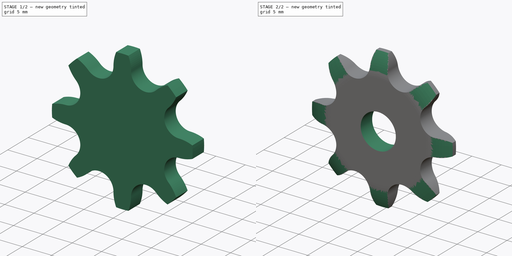
[diagram: build sequence overview — one tinted view per stage of 2, left to right]
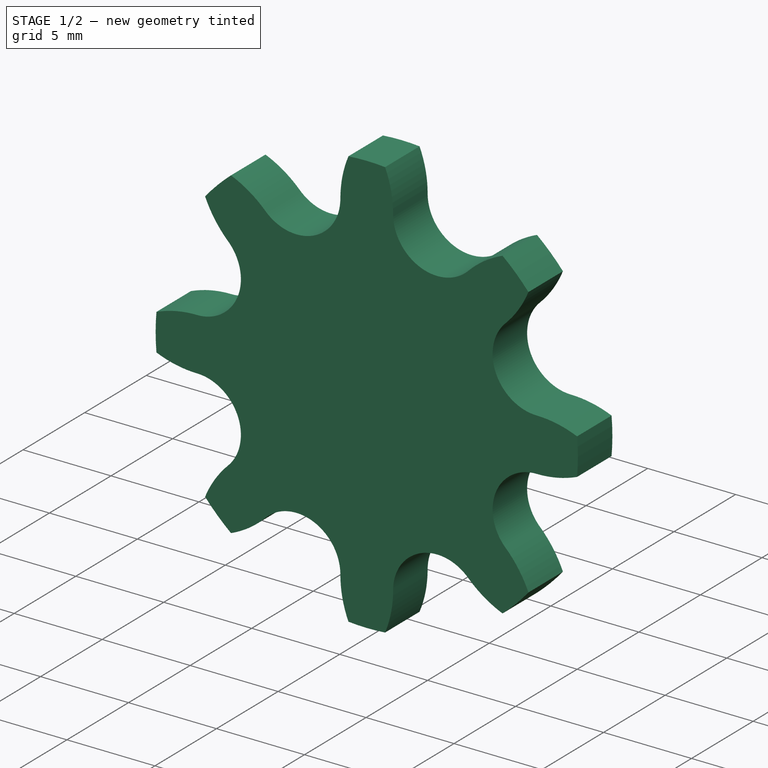
[diagram: stage 1 of 2 — iso view after this stage's code; geometry added in this stage tinted green]
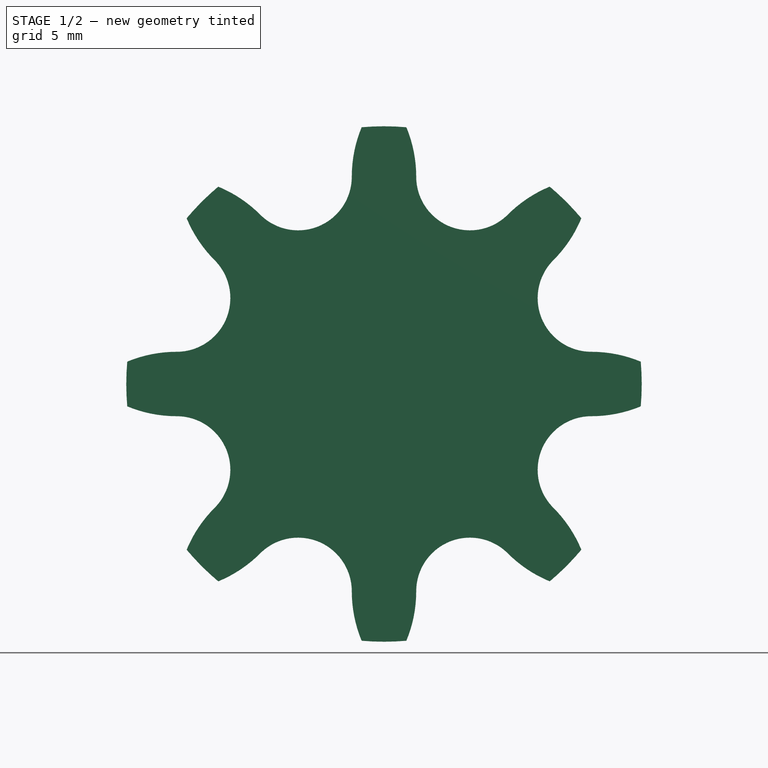
[diagram: stage 1 of 2 — front view after this stage's code; geometry added in this stage tinted green]
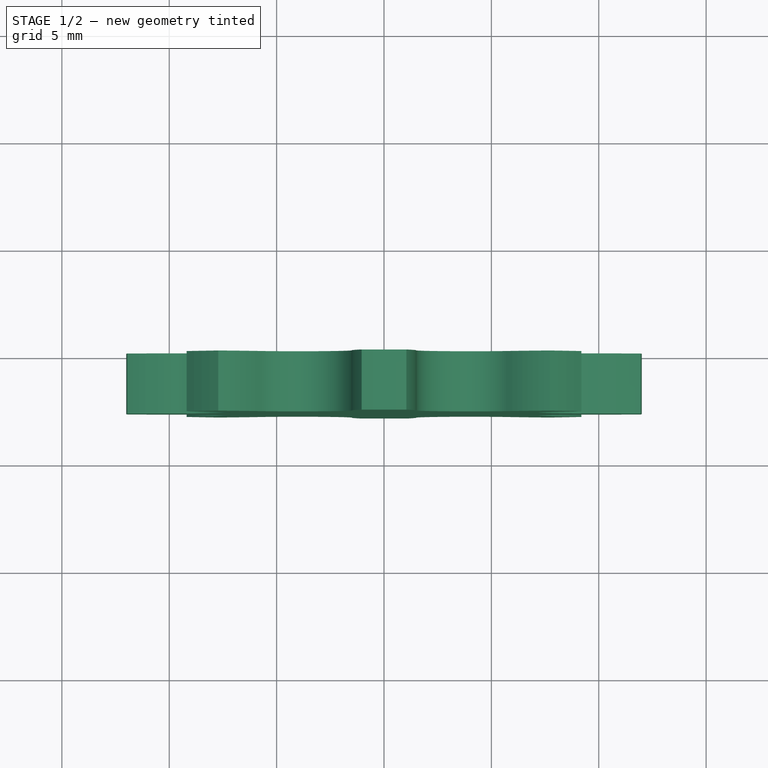
[diagram: stage 1 of 2 — top view after this stage's code; geometry added in this stage tinted green]
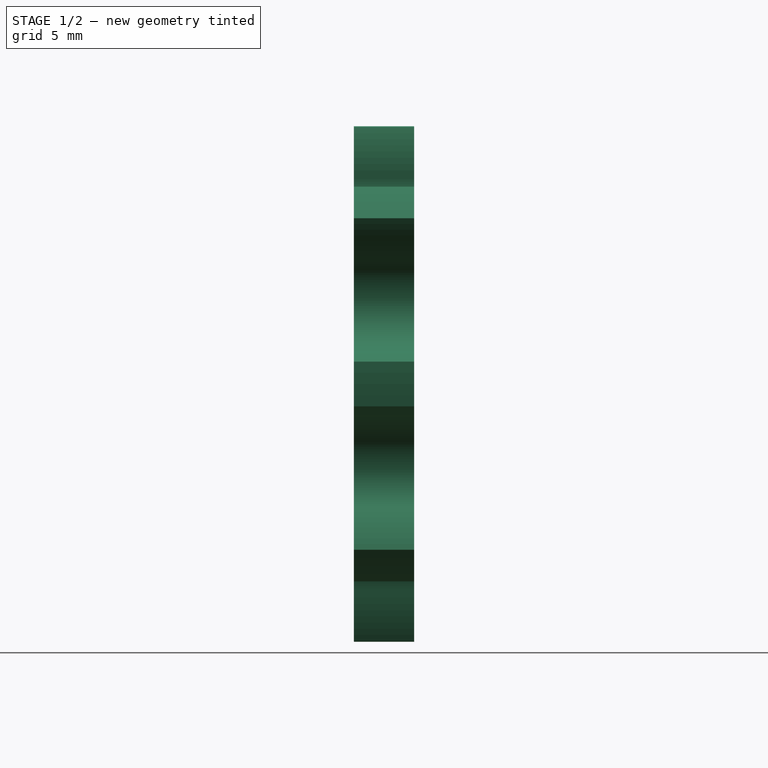
[diagram: stage 1 of 2 — right view after this stage's code; geometry added in this stage tinted green]
FCSTD DOCUMENT  (FreeCAD 0.20R29603 (Git))
Label: Plate Wheel simplex 8x3
License: Attribution 4.0 International (CC BY 4.0)
LicenseURL: http://creativecommons.org/licenses/by/4.0/
objects: Sketcher::SketchObject×3, Spreadsheet::Sheet×1, PartDesign::Pad×1, PartDesign::PolarPattern×1, PartDesign::Groove×1, PartDesign::Pocket×1, PartDesign::Body×1
note: 11 computed .brp shape members not serialized (recipe doc carries the construction recipe); baked Part::Feature solids carry a one-line shape summary decoded from their .brp

FEATURE [Spreadsheet::Sheet] Spreadsheet  label="Data"
  TeethNumber = 0
  cells = B1=P (Pitch); C1=Wc (Chain width); D1=Dr (Roller diameter); E1=Tr (Tooth radius); F1=Rw (Radius width); G1=Wt (Tooth width); H1=z (Number of teeth); I1=De (External Diameter); J1=Dp (Pitch diameter); K1=D (Hole diameter); L1=H (Total height); A2==hiddenref(.TeethNumber.String); B2(P)==.B3; C2(Wc)==.C3; D2(Dr)==.D3; E2(Tr)==.E3; F2(Rw)==.F3; G2(Wt)==.G3; H2(z)==.H3; I2(De)==.I3; J2(Dp)==.J3; K2(D)==.K3; L2(H)==.L3; A3=Z 8; B3=8; C3=3; D3=5; E3=8; F3=1; G3=2.8; H3=8; I3=24; J3=20.9; K3=6; L3=2.8; A4=Z 9; B4=8; C4=3; D4=5; E4=8; F4=1; G4=2.8; H4=9; I4=26.6; J4=23.39; K4=6; L4=2.8; A5=Z 10; B5=8; C5=3; D5=5; E5=8; F5=1; G5=2.8; H5=10; I5=29.2; J5=25.89; K5=8; L5=2.8; A6=Z 11; B6=8; C6=3; D6=5; E6=8; F6=1; G6=2.8; H6=11; I6=31.7; J6=28.39; K6=8; L6=2.8; A7=Z 12; B7=8; C7=3; D7=5; E7=8; F7=1; G7=2.8; H7=12; I7=34.2; J7=30.91; K7=8; L7=2.8; A8=Z 13; B8=8; C8=3; D8=5; E8=8; F8=1; G8=2.8; H8=13; I8=36.7; J8=33.42; K8=8; L8=2.8; A9=Z 14; B9=8; C9=3; D9=5; E9=8; F9=1; G9=2.8; H9=14; I9=39.2; J9=35.95; K9=8; L9=2.8; A10=Z 15; B10=8; C10=3; D10=5; E10=8; F10=1; G10=2.8; H10=15; I10=41.7; J10=38.48; K10=8; L10=2.8; A11=Z 16; B11=8; C11=3; D11=5; E11=8; F11=1; G11=2.8; H11=16; I11=44.3; J11=41.01; K11=8; L11=2.8; A12=Z 17; B12=8; C12=3; D12=5; E12=8; F12=1; G12=2.8; H12=17; I12=46.8; J12=43.53; K12=8; L12=2.8; A13=Z 18; B13=8; C13=3; D13=5; E13=8; F13=1; G13=2.8; H13=18; I13=49.3; J13=46.07; K13=8; L13=2.8; A14=Z 19; B14=8; C14=3; D14=5; E14=8; F14=1; G14=2.8; H14=19; I14=51.9; J14=48.61; K14=8; L14=2.8; A15=Z 20; B15=8; C15=3; D15=5; E15=8; F15=1; G15=2.8; H15=20; I15=54.4; J15=51.14; K15=8; L15=2.8; A16=Z 21; B16=8; C16=3; D16=5; E16=8; F16=1; G16=2.8; H16=21; I16=57; J16=53.68; K16=8; L16=2.8; A17=Z 22; B17=8; C17=3; D17=5; E17=8; F17=1; G17=2.8; H17=22; I17=59.5; +339 more cells
  expr: .TeethNumber.Enum = cells[<<A3:|>>]
  expr: .cells.Bind.B2.ZZ2 = tuple(.cells; <<B>> + str(hiddenref(TeethNumber) + 3); <<ZZ>> + str(hiddenref(TeethNumber) + 3))
FEATURE [Sketcher::SketchObject] Sketch  label="Tooth sketch"
  FullyConstrained = true
  MapMode = 5
  Placement = pos=(0,0,0) rot=(1,0,0;1.5708rad)
  Support = -> [XZ_Plane]
  expr: .Constraints.De = <<Data>>.De
  expr: .Constraints.Di = <<Data>>.Dp - <<Data>>.Dr
  expr: .Constraints.Dp = <<Data>>.Dp
  expr: .Constraints.Dr = <<Data>>.Dr
  expr: .Constraints.P = Spreadsheet.P
  expr: .Constraints.Ru = 0.12 * <<Data>>.Dr * (<<Data>>.z + 2)
  sketch-geometry (16):
    g0: Circle CenterX=0 CenterY=0 CenterZ=0 NormalX=0 NormalY=0 NormalZ=1 AngleXU=0 Radius=10.45
    g1: LineSegment StartX=-4 StartY=9.65414 StartZ=0 EndX=4 EndY=9.65414 EndZ=0
    g2: Circle CenterX=-4 CenterY=9.65414 CenterZ=0 NormalX=0 NormalY=0 NormalZ=1 AngleXU=0 Radius=2.5
    g3: Circle CenterX=4 CenterY=9.65414 CenterZ=0 NormalX=0 NormalY=0 NormalZ=1 AngleXU=0 Radius=2.5
    g4: LineSegment StartX=0 StartY=0 StartZ=0 EndX=-4 EndY=9.65414 EndZ=0
    g5: LineSegment StartX=0 StartY=0 StartZ=0 EndX=4 EndY=9.65414 EndZ=0
    g6: Circle CenterX=0 CenterY=0 CenterZ=0 NormalX=0 NormalY=0 NormalZ=1 AngleXU=0 Radius=7.95
    g7: Circle CenterX=0 CenterY=0 CenterZ=0 NormalX=0 NormalY=0 NormalZ=1 AngleXU=0 Radius=12
    g8: ArcOfCircle CenterX=-4 CenterY=9.65414 CenterZ=0 NormalX=0 NormalY=0 NormalZ=1 AngleXU=0 Radius=2.5 StartAngle=5.10519 EndAngle=6.28319
    g9: ArcOfCircle CenterX=4.5 CenterY=9.65414 CenterZ=0 NormalX=0 NormalY=0 NormalZ=1 AngleXU=0 Radius=6 StartAngle=2.74809 EndAngle=3.14159
    g10: ArcOfCircle CenterX=4 CenterY=9.65414 CenterZ=0 NormalX=0 NormalY=0 NormalZ=1 AngleXU=0 Radius=2.5 StartAngle=3.14159 EndAngle=4.31959
    g11: ArcOfCircle CenterX=-4.5 CenterY=9.65414 CenterZ=0 NormalX=0 NormalY=0 NormalZ=1 AngleXU=0 Radius=6 StartAngle=5e-16 EndAngle=0.393507
    g12: ArcOfCircle CenterX=0 CenterY=0 CenterZ=0 NormalX=0 NormalY=0 NormalZ=1 AngleXU=0 Radius=12 StartAngle=1.4839 EndAngle=1.65769
    g13: LineSegment StartX=-3.04306 StartY=7.34454 StartZ=0 EndX=-3.04306 EndY=0 EndZ=0
    g14: LineSegment StartX=3.04306 StartY=7.34454 StartZ=0 EndX=3.04306 EndY=0 EndZ=0
    g15: LineSegment StartX=-3.04306 StartY=0 StartZ=0 EndX=3.04306 EndY=0 EndZ=0
  constraints (42):
    c: Coincident(g0,g-1)
    c: Diameter(g0) = 20.9  'Dp'
    c: PointOnObject(g1,g0)
    c: PointOnObject(g1,g0)
    c: Horizontal(g1)
    c: DistanceX(g1,g1) = 8  'P'
    c: Coincident(g2,g1)
    c: Coincident(g3,g1)
    c: Equal(g2,g3)
    c: Diameter(g2) = 5  'Dr'
    c: Coincident(g4,g-1)
    c: Coincident(g4,g1)
    c: Coincident(g5,g-1)
    c: Coincident(g6,g-1)
    c: Diameter(g6) = 15.9  'Di'
    c: Coincident(g7,g-1)
    c: Diameter(g7) = 24  'De'
    c: Coincident(g8,g1)
    c: PointOnObject(g8,g4)
    c: PointOnObject(g8,g2)
    c: PointOnObject(g8,g1)
    c: PointOnObject(g9,g7)
    c: Tangent(g9,g8) = 1.5708
    c: Radius(g9) = 6  'Ru'
    c: Coincident(g10,g1)
    c: PointOnObject(g10,g5)
    c: PointOnObject(g10,g1)
    c: Equal(g9,g11)
    c: Coincident(g12,g-1)
    c: Coincident(g12,g9)
    c: Coincident(g12,g11)
    c: Coincident(g5,g10)
    c: Equal(g10,g8)
    c: Tangent(g11,g10) = 1.5708
    c: Coincident(g13,g8)
    c: Vertical(g13)
    c: Coincident(g14,g10)
    c: Vertical(g14)
    c: Coincident(g15,g13)
    c: Coincident(g15,g14)
    c: Horizontal(g15)
    c: PointOnObject(g12,g15)
FEATURE [PartDesign::Pad] Pad  label="Tooth"
  Direction = (0,-1,-2e-16)
  Length = 2.8
  Length2 = 100
  Placement = pos=(0,0,0) rot=(1,0,0;1.5708rad)
  Profile = -> Sketch
  Type = 0
  expr: Length = <<Data>>.Wt
FEATURE [Sketcher::SketchObject] Sketch001  label="Radius"
  FullyConstrained = true
  MapMode = 5
  Placement = pos=(0,0,0) rot=(0.57735,0.57735,0.57735;2.0944rad)
  Support = -> [YZ_Plane]
  expr: .Constraints.Re = <<Data>>.De / 2
  expr: .Constraints.Rw = <<Data>>.Rw
  expr: .Constraints.Tr = <<Data>>.Tr
  expr: .Constraints.Wt = <<Data>>.Wt
  sketch-geometry (7):
    g0: ArcOfCircle CenterX=5.2 CenterY=8.12702 CenterZ=0 NormalX=0 NormalY=0 NormalZ=1 AngleXU=0 Radius=8 StartAngle=2.63623 EndAngle=3.1416
    g1: LineSegment StartX=-1.8 StartY=12 StartZ=0 EndX=-2.8 EndY=12 EndZ=0
    g2: LineSegment StartX=-2.8 StartY=12 StartZ=0 EndX=-2.8 EndY=8.127 EndZ=0
    g3: LineSegment StartX=-1 StartY=12 StartZ=0 EndX=0 EndY=12 EndZ=0
    g4: LineSegment StartX=0 StartY=12 StartZ=0 EndX=0 EndY=8.127 EndZ=0
    g5: ArcOfCircle CenterX=-8 CenterY=8.12702 CenterZ=0 NormalX=0 NormalY=0 NormalZ=1 AngleXU=0 Radius=8 StartAngle=6.28318 EndAngle=6.78855
    g6: LineSegment StartX=-1.8 StartY=12 StartZ=0 EndX=-1 EndY=12 EndZ=0
  constraints (22):
    c: Radius(g0) = 8  'Tr'
    c: Coincident(g1,g0)
    c: Horizontal(g1)
    c: DistanceX(g1,g1) = 1  'Rw'
    c: Coincident(g2,g1)
    c: Coincident(g2,g0)
    c: Vertical(g2)
    c: Tangent(g2,g0)
    c: Horizontal(g3)
    c: Coincident(g4,g3)
    c: Vertical(g4)
    c: Coincident(g5,g3)
    c: Coincident(g5,g4)
    c: Equal(g1,g3)
    c: Equal(g2,g4)
    c: Equal(g0,g5)
    c: DistanceY(g3) = 12  'Re'
    c: DistanceX(g1,g3) = 2.8  'Wt'
    c: Coincident(g6,g0)
    c: Coincident(g6,g3)
    c: Horizontal(g6)
    c: PointOnObject(g3,g-2)
FEATURE [PartDesign::PolarPattern] PolarPattern  label="Teeth"
  Angle = 360
  Axis = -> Y_Axis
  BaseFeature = -> Pad
  Occurrences = 8
  Originals = -> [Pad]
  Placement = pos=(0,0,0) rot=(1,0,0;1.5708rad)
  Refine = true
  expr: Occurrences = <<Data>>.z
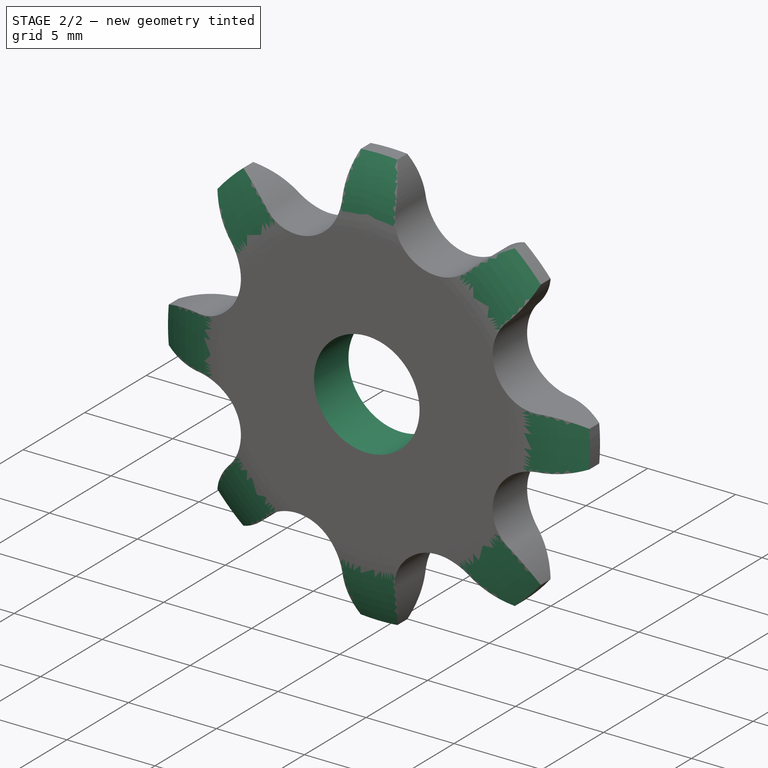
[diagram: stage 2 of 2 — iso view after this stage's code; geometry added in this stage tinted green]
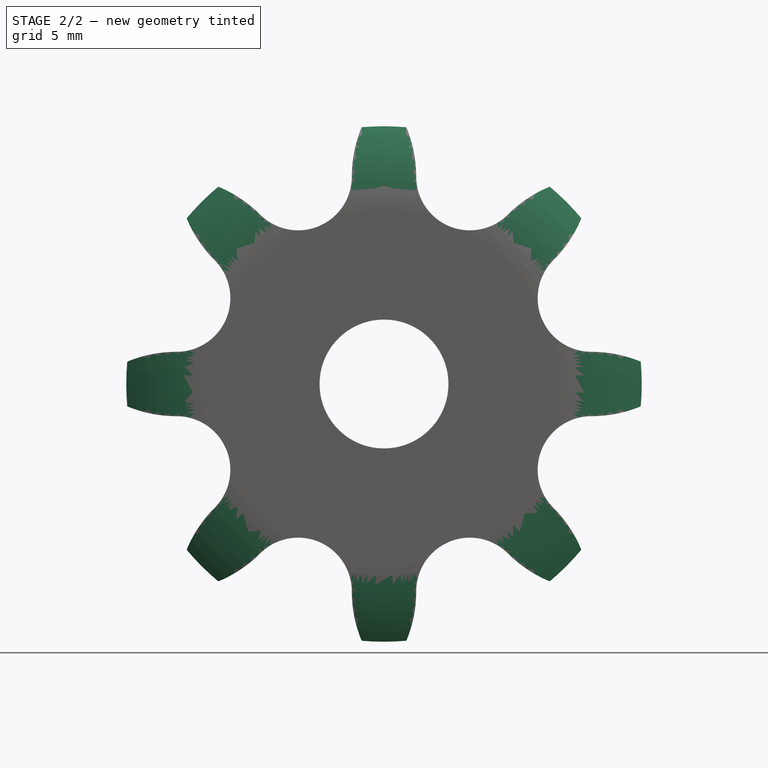
[diagram: stage 2 of 2 — front view after this stage's code; geometry added in this stage tinted green]
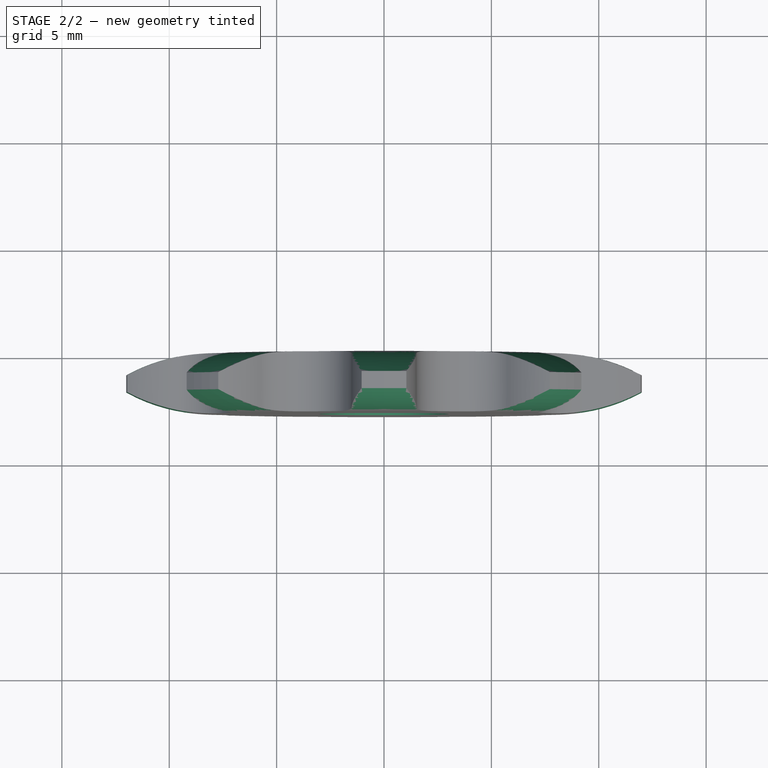
[diagram: stage 2 of 2 — top view after this stage's code; geometry added in this stage tinted green]
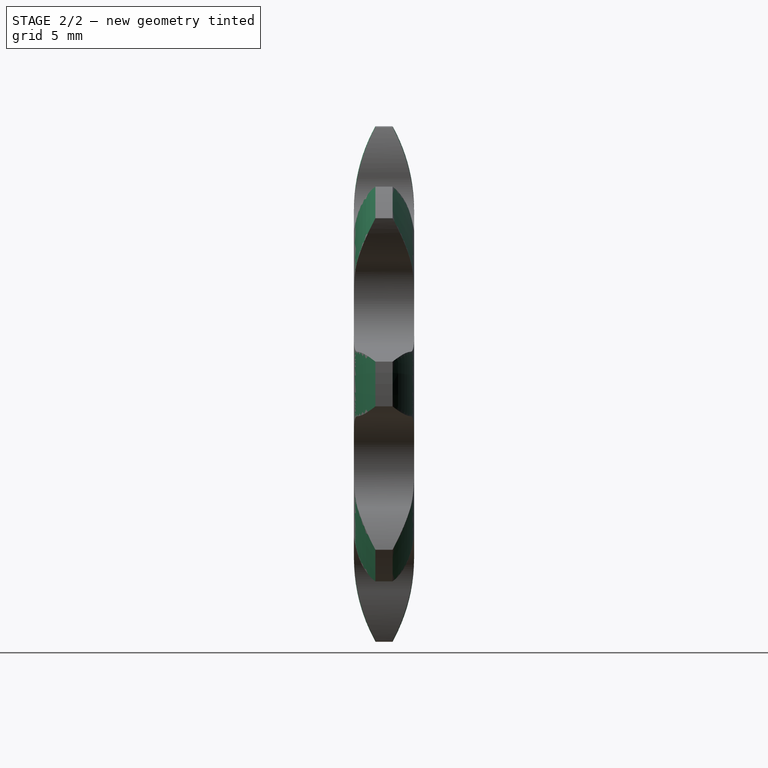
[diagram: stage 2 of 2 — right view after this stage's code; geometry added in this stage tinted green]
FEATURE [PartDesign::Groove] Groove  label="Teeth Radius"
  Angle = 360
  Axis = (1e-16,1,-1e-16)
  Base = (0,0,0)
  BaseFeature = -> PolarPattern
  Placement = pos=(0,0,0) rot=(1,0,0;1.5708rad)
  Profile = -> Sketch001
  ReferenceAxis = -> Y_Axis
  Reversed = true
FEATURE [Sketcher::SketchObject] Sketch002  label="Hole Sketch"
  FullyConstrained = true
  MapMode = 5
  Placement = pos=(0,0,0) rot=(1,0,0;1.5708rad)
  Support = -> [XZ_Plane]
  expr: .Constraints.D = <<Data>>.D
  sketch-geometry (1):
    g0: Circle CenterX=0 CenterY=0 CenterZ=0 NormalX=0 NormalY=0 NormalZ=1 AngleXU=0 Radius=3
  constraints (2):
    c: Coincident(g0,g-1)
    c: Diameter(g0) = 6  'D'
FEATURE [PartDesign::Pocket] Pocket  label="Hole"
  BaseFeature = -> Groove
  Direction = (0,1,2e-16)
  Length = 5
  Length2 = 100
  Placement = pos=(0,0,0) rot=(1,0,0;1.5708rad)
  Profile = -> Sketch002
  Reversed = true
  Type = 1
FEATURE [PartDesign::Body] Body  label="Plate Wheel simplex 8x3"
  Group = -> [Sketch,Pad,PolarPattern,Sketch001,Groove,Sketch002,Pocket]
  Origin = -> Origin
  Tip = -> Pocket
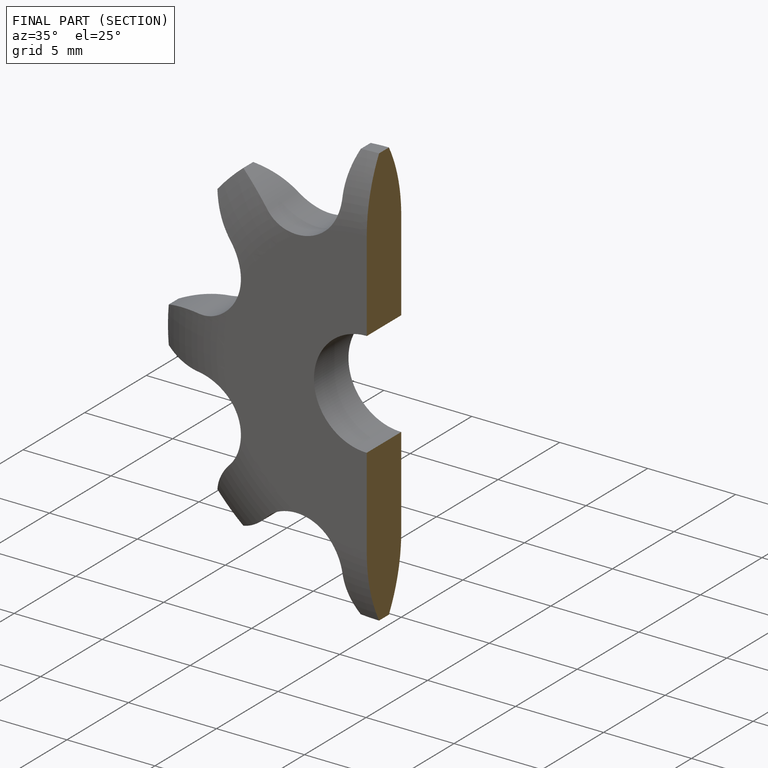
[diagram: finished part — half-section view (interior)]
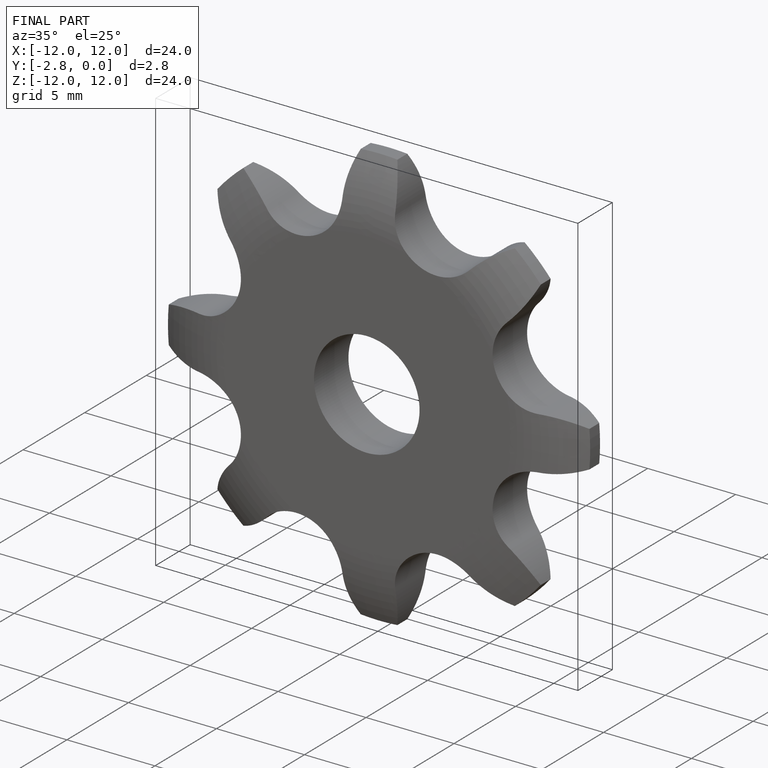
[diagram: finished part — iso view with bounding-box wireframe]
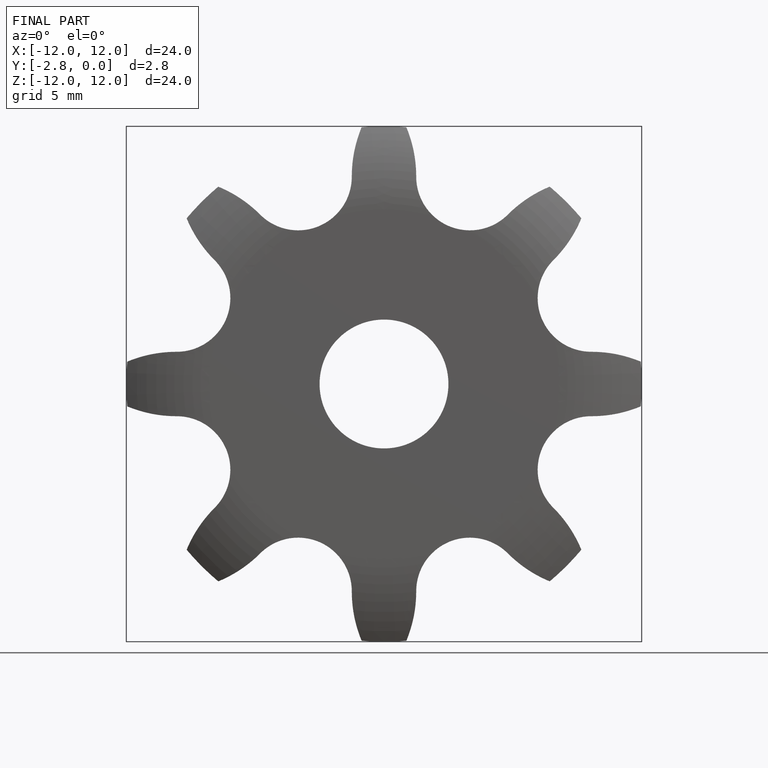
[diagram: finished part — front view with bounding-box wireframe]
